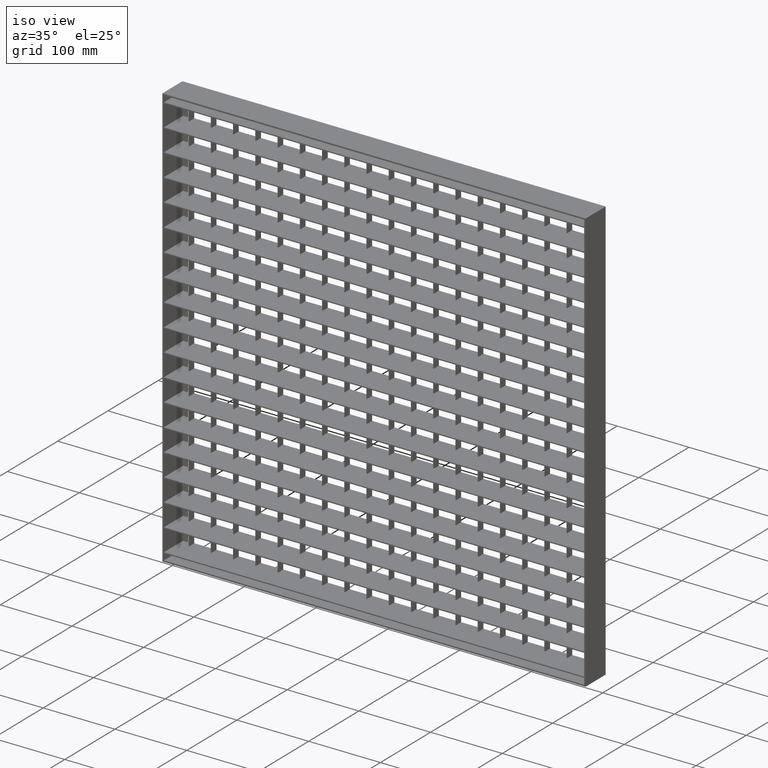
[diagram: clean part render]
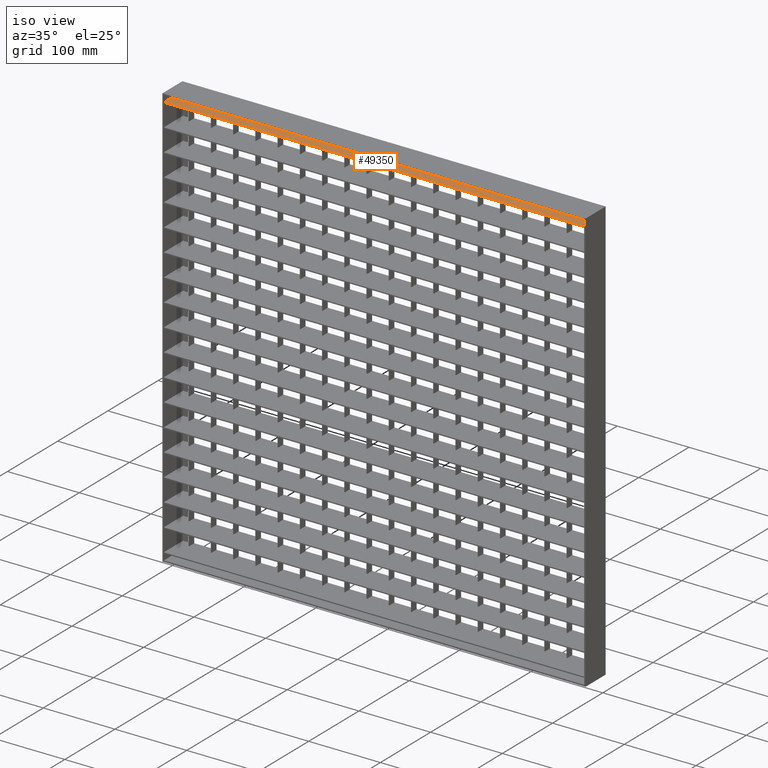
[diagram: same view with one face highlighted and labeled with its STEP entity id]
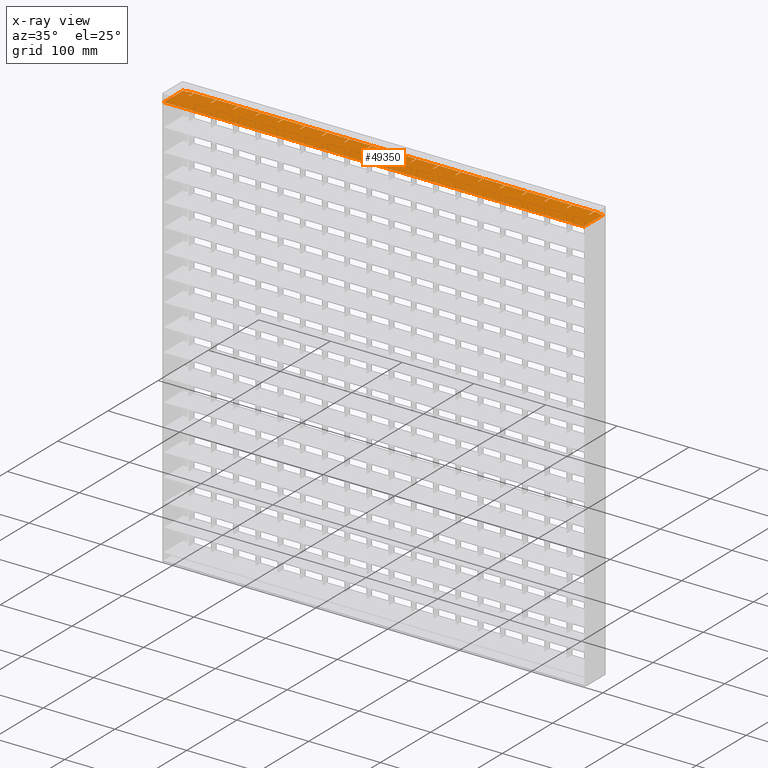
[diagram: x-ray of the same camera — body ghosted, the highlighted face saturated]
A machine part, iso view. The second image highlights one B-rep face of the part: STEP entity #49350.
The next image is the same camera in x-ray: the body ghosted, the highlighted face saturated — about 0% of this face is hidden behind the body in this view.
In plain terms, the highlighted planar face has unit normal (0, 0, 1).
Its self-contained STEP definition (entity closure, byte-faithful):
#178 = VERTEX_POINT ( 'NONE', #47613 ) ;
#377 = VERTEX_POINT ( 'NONE', #43850 ) ;
#491 = EDGE_CURVE ( 'NONE', #38426, #30958, #29042, .T. ) ;
#538 = CARTESIAN_POINT ( 'NONE',  ( 325.5000000000000600, 20.00000000000009600, -10.75000000000009200 ) ) ;
#606 = ORIENTED_EDGE ( 'NONE', *, *, #12382, .T. ) ;
#748 = EDGE_CURVE ( 'NONE', #22182, #36396, #16871, .T. ) ;
#953 = DIRECTION ( 'NONE',  ( -0.0000000000000000000, 1.000000000000000000, 0.0000000000000000000 ) ) ;
#1036 = CARTESIAN_POINT ( 'NONE',  ( 47.49999999999998600, 20.00000000000001400, -10.75000000000009200 ) ) ;
#1085 = CARTESIAN_POINT ( 'NONE',  ( 628.0281151192512000, 9.999999999999994700, -10.75000000000009200 ) ) ;
#1111 = ORIENTED_EDGE ( 'NONE', *, *, #28995, .F. ) ;
#1199 = CARTESIAN_POINT ( 'NONE',  ( 628.0281151192512000, -19.99999999999981200, -10.75000000000009200 ) ) ;
#1262 = DIRECTION ( 'NONE',  ( 1.000000000000000000, 0.0000000000000000000, -0.0000000000000000000 ) ) ;
#1347 = DIRECTION ( 'NONE',  ( -1.000000000000000000, -3.061616997868382600E-016, 0.0000000000000000000 ) ) ;
#1507 = VECTOR ( 'NONE', #43702, 1000.000000000000000 ) ;
#1565 = VECTOR ( 'NONE', #50075, 1000.000000000000000 ) ;
#1585 = VECTOR ( 'NONE', #9412, 1000.000000000000000 ) ;
#1677 = ORIENTED_EDGE ( 'NONE', *, *, #14624, .T. ) ;
#1682 = VECTOR ( 'NONE', #26726, 1000.000000000000000 ) ;
#1778 = VERTEX_POINT ( 'NONE', #36114 ) ;
#1788 = LINE ( 'NONE', #45866, #28157 ) ;
#1843 = VERTEX_POINT ( 'NONE', #10263 ) ;
#1844 = ORIENTED_EDGE ( 'NONE', *, *, #39685, .T. ) ;
#1917 = CARTESIAN_POINT ( 'NONE',  ( 109.5000000000000400, 20.00000000000003200, -10.75000000000009200 ) ) ;
#1943 = CARTESIAN_POINT ( 'NONE',  ( 480.5000000000000600, -19.99999999999981200, -10.75000000000009200 ) ) ;
#1993 = CARTESIAN_POINT ( 'NONE',  ( 588.0000000000002300, 18.00000000000000400, -10.75000000000014900 ) ) ;
#2036 = EDGE_CURVE ( 'NONE', #45714, #49116, #30170, .T. ) ;
#2067 = LINE ( 'NONE', #29041, #42598 ) ;
#2077 = LINE ( 'NONE', #20305, #35161 ) ;
#2201 = VECTOR ( 'NONE', #43516, 1000.000000000000000 ) ;
#2261 = ORIENTED_EDGE ( 'NONE', *, *, #24356, .T. ) ;
#2312 = EDGE_CURVE ( 'NONE', #22657, #15153, #1788, .T. ) ;
#2346 = LINE ( 'NONE', #39478, #12466 ) ;
#2358 = ORIENTED_EDGE ( 'NONE', *, *, #54638, .T. ) ;
#2379 = DIRECTION ( 'NONE',  ( -0.0000000000000000000, 1.000000000000000000, 0.0000000000000000000 ) ) ;
#2452 = LINE ( 'NONE', #36810, #4451 ) ;
#2471 = LINE ( 'NONE', #47504, #15975 ) ;
#2476 = LINE ( 'NONE', #22723, #47069 ) ;
#2493 = LINE ( 'NONE', #53087, #39701 ) ;
#2497 = EDGE_CURVE ( 'NONE', #33221, #20227, #9217, .T. ) ;
#2511 = VERTEX_POINT ( 'NONE', #16214 ) ;
#2566 = ORIENTED_EDGE ( 'NONE', *, *, #51029, .T. ) ;
#2604 = LINE ( 'NONE', #27017, #31545 ) ;
#2658 = CARTESIAN_POINT ( 'NONE',  ( 140.5000000000000600, -19.99999999999981200, -10.75000000000009200 ) ) ;
#2987 = CARTESIAN_POINT ( 'NONE',  ( 511.5000000000000600, 20.00000000000015600, -10.75000000000009200 ) ) ;
#2991 = DIRECTION ( 'NONE',  ( 1.000000000000000000, 0.0000000000000000000, -0.0000000000000000000 ) ) ;
#3079 = DIRECTION ( 'NONE',  ( -0.0000000000000000000, 1.000000000000000000, 0.0000000000000000000 ) ) ;
#3356 = CARTESIAN_POINT ( 'NONE',  ( 628.0281151192512000, 9.999999999999994700, -10.75000000000009200 ) ) ;
#3358 = VECTOR ( 'NONE', #14367, 1000.000000000000000 ) ;
#3559 = DIRECTION ( 'NONE',  ( -1.000000000000000000, 0.0000000000000000000, 0.0000000000000000000 ) ) ;
#3568 = DIRECTION ( 'NONE',  ( -0.0000000000000000000, 1.000000000000000000, 0.0000000000000000000 ) ) ;
#3670 = CARTESIAN_POINT ( 'NONE',  ( 418.5000000000000600, 20.00000000000012800, -10.75000000000009200 ) ) ;
#3686 = DIRECTION ( 'NONE',  ( -0.0000000000000000000, 1.000000000000000000, 0.0000000000000000000 ) ) ;
#3726 = CARTESIAN_POINT ( 'NONE',  ( 140.5000000000000600, 20.00000000000004300, -10.75000000000009200 ) ) ;
#3787 = VECTOR ( 'NONE', #49495, 1000.000000000000000 ) ;
#3949 = DIRECTION ( 'NONE',  ( -1.000000000000000000, 0.0000000000000000000, 0.0000000000000000000 ) ) ;
#3998 = EDGE_CURVE ( 'NONE', #52603, #377, #45279, .T. ) ;
#4078 = DIRECTION ( 'NONE',  ( 0.0000000000000000000, -1.000000000000000000, 0.0000000000000000000 ) ) ;
#4127 = VECTOR ( 'NONE', #11905, 1000.000000000000000 ) ;
#4178 = ORIENTED_EDGE ( 'NONE', *, *, #43328, .F. ) ;
#4277 = LINE ( 'NONE', #4541, #46864 ) ;
#4325 = CARTESIAN_POINT ( 'NONE',  ( 543.5000000000001100, -19.99999999999981200, -10.75000000000009200 ) ) ;
#4331 = DIRECTION ( 'NONE',  ( 1.000000000000000000, 0.0000000000000000000, -0.0000000000000000000 ) ) ;
#4338 = LINE ( 'NONE', #10538, #48946 ) ;
#4373 = VERTEX_POINT ( 'NONE', #49702 ) ;
#4434 = CARTESIAN_POINT ( 'NONE',  ( 628.0281151192512000, 9.999999999999994700, -10.75000000000009200 ) ) ;
#4451 = VECTOR ( 'NONE', #6421, 1000.000000000000000 ) ;
#4541 = CARTESIAN_POINT ( 'NONE',  ( 418.5000000000001100, -19.99999999999981200, -10.75000000000009200 ) ) ;
#4615 = CARTESIAN_POINT ( 'NONE',  ( 449.5000000000000600, 9.999999999999994700, -10.75000000000014900 ) ) ;
#4619 = ORIENTED_EDGE ( 'NONE', *, *, #39661, .F. ) ;
#4627 = CARTESIAN_POINT ( 'NONE',  ( 542.5000000000000000, -19.99999999999981200, -10.75000000000009200 ) ) ;
#4663 = ORIENTED_EDGE ( 'NONE', *, *, #31160, .T. ) ;
#4893 = VECTOR ( 'NONE', #46875, 1000.000000000000000 ) ;
#5006 = LINE ( 'NONE', #53693, #7710 ) ;
#5024 = CARTESIAN_POINT ( 'NONE',  ( 450.5000000000001100, -19.99999999999981200, -10.75000000000009200 ) ) ;
#5067 = CARTESIAN_POINT ( 'NONE',  ( 201.5000000000000000, -19.99999999999981200, -10.75000000000009200 ) ) ;
#5092 = VECTOR ( 'NONE', #47512, 1000.000000000000000 ) ;
#5162 = CARTESIAN_POINT ( 'NONE',  ( 295.5000000000000600, -19.99999999999981200, -10.75000000000009200 ) ) ;
#5805 = DIRECTION ( 'NONE',  ( 1.000000000000000000, 0.0000000000000000000, -0.0000000000000000000 ) ) ;
#5812 = VERTEX_POINT ( 'NONE', #25725 ) ;
#5829 = ORIENTED_EDGE ( 'NONE', *, *, #45049, .T. ) ;
#5867 = CARTESIAN_POINT ( 'NONE',  ( 109.5000000000000400, -19.99999999999981200, -10.75000000000009200 ) ) ;
#6244 = VERTEX_POINT ( 'NONE', #29748 ) ;
#6421 = DIRECTION ( 'NONE',  ( -1.000000000000000000, 0.0000000000000000000, 0.0000000000000000000 ) ) ;
#6423 = EDGE_CURVE ( 'NONE', #42953, #45344, #33454, .T. ) ;
#6426 = VECTOR ( 'NONE', #47979, 1000.000000000000000 ) ;
#6432 = DIRECTION ( 'NONE',  ( -1.000000000000000000, -3.061616997868382600E-016, 0.0000000000000000000 ) ) ;
#6440 = CARTESIAN_POINT ( 'NONE',  ( 46.50000000000009900, -19.99999999999981200, -10.75000000000009200 ) ) ;
#6534 = ORIENTED_EDGE ( 'NONE', *, *, #25739, .T. ) ;
#6711 = DIRECTION ( 'NONE',  ( 0.0000000000000000000, -1.000000000000000000, 0.0000000000000000000 ) ) ;
#6932 = LINE ( 'NONE', #13807, #18434 ) ;
#7199 = ORIENTED_EDGE ( 'NONE', *, *, #47194, .T. ) ;
#7355 = CARTESIAN_POINT ( 'NONE',  ( 628.0281151192512000, 9.999999999999994700, -10.75000000000009200 ) ) ;
#7374 = ORIENTED_EDGE ( 'NONE', *, *, #49937, .T. ) ;
#7397 = CARTESIAN_POINT ( 'NONE',  ( 108.5000000000000400, 9.999999999999994700, -10.75000000000009200 ) ) ;
#7493 = CARTESIAN_POINT ( 'NONE',  ( 77.50000000000012800, 9.999999999999994700, -10.75000000000009200 ) ) ;
#7688 = ORIENTED_EDGE ( 'NONE', *, *, #11691, .T. ) ;
#7710 = VECTOR ( 'NONE', #31618, 1000.000000000000000 ) ;
#7749 = VERTEX_POINT ( 'NONE', #29142 ) ;
#7794 = EDGE_CURVE ( 'NONE', #51456, #35795, #48159, .T. ) ;
#7805 = VECTOR ( 'NONE', #55450, 1000.000000000000000 ) ;
#7845 = EDGE_CURVE ( 'NONE', #54550, #21712, #20455, .T. ) ;
#7988 = CARTESIAN_POINT ( 'NONE',  ( 628.0281151192510800, 20.00000000000019200, -10.75000000000009200 ) ) ;
#8358 = LINE ( 'NONE', #5067, #1585 ) ;
#8429 = VECTOR ( 'NONE', #47719, 1000.000000000000000 ) ;
#8512 = VECTOR ( 'NONE', #4078, 1000.000000000000000 ) ;
#8520 = EDGE_CURVE ( 'NONE', #32876, #31374, #32517, .T. ) ;
#8796 = LINE ( 'NONE', #51184, #51357 ) ;
#8816 = CARTESIAN_POINT ( 'NONE',  ( 628.0281151192512000, 9.999999999999994700, -10.75000000000009200 ) ) ;
#8931 = CARTESIAN_POINT ( 'NONE',  ( 263.5000000000000600, 9.999999999999994700, -10.75000000000009200 ) ) ;
#8985 = CARTESIAN_POINT ( 'NONE',  ( 628.0281151192512000, 9.999999999999994700, -10.75000000000009200 ) ) ;
#9103 = CARTESIAN_POINT ( 'NONE',  ( 233.5000000000000900, 20.00000000000007100, -10.75000000000009200 ) ) ;
#9217 = LINE ( 'NONE', #29958, #8512 ) ;
#9412 = DIRECTION ( 'NONE',  ( 0.0000000000000000000, -1.000000000000000000, 0.0000000000000000000 ) ) ;
#9439 = LINE ( 'NONE', #32504, #26952 ) ;
#9459 = CARTESIAN_POINT ( 'NONE',  ( 387.5000000000000000, 9.999999999999994700, -10.75000000000014900 ) ) ;
#9519 = ORIENTED_EDGE ( 'NONE', *, *, #17536, .T. ) ;
#9772 = ORIENTED_EDGE ( 'NONE', *, *, #39008, .T. ) ;
#9776 = ORIENTED_EDGE ( 'NONE', *, *, #14704, .T. ) ;
#9848 = DIRECTION ( 'NONE',  ( -0.0000000000000000000, 1.000000000000000000, 0.0000000000000000000 ) ) ;
#9912 = CARTESIAN_POINT ( 'NONE',  ( 325.5000000000000600, -19.99999999999981200, -10.75000000000009200 ) ) ;
#10023 = DIRECTION ( 'NONE',  ( 0.0000000000000000000, -1.000000000000000000, 0.0000000000000000000 ) ) ;
#10201 = CARTESIAN_POINT ( 'NONE',  ( 628.0281151192512000, 9.999999999999994700, -10.75000000000009200 ) ) ;
#10263 = CARTESIAN_POINT ( 'NONE',  ( 326.5000000000000600, 19.99999999999999600, -10.75000000000014900 ) ) ;
#10380 = CARTESIAN_POINT ( 'NONE',  ( 574.5000000000000000, -19.99999999999981200, -10.75000000000009200 ) ) ;
#10487 = VERTEX_POINT ( 'NONE', #42340 ) ;
#10531 = VERTEX_POINT ( 'NONE', #51931 ) ;
#10538 = CARTESIAN_POINT ( 'NONE',  ( 628.0281151192512000, 9.999999999999994700, -10.75000000000009200 ) ) ;
#10655 = CARTESIAN_POINT ( 'NONE',  ( 108.5000000000000400, 19.99999999999999600, -10.75000000000014900 ) ) ;
#10659 = LINE ( 'NONE', #49583, #27526 ) ;
#10693 = CARTESIAN_POINT ( 'NONE',  ( 171.5000000000000300, -19.99999999999981200, -10.75000000000009200 ) ) ;
#10791 = VECTOR ( 'NONE', #1262, 1000.000000000000000 ) ;
#10828 = EDGE_CURVE ( 'NONE', #30958, #5812, #21959, .T. ) ;
#11087 = CARTESIAN_POINT ( 'NONE',  ( 628.0281151192512000, 9.999999999999994700, -10.75000000000009200 ) ) ;
#11128 = DIRECTION ( 'NONE',  ( -1.000000000000000000, -3.061616997868382600E-016, 0.0000000000000000000 ) ) ;
#11330 = ORIENTED_EDGE ( 'NONE', *, *, #50447, .T. ) ;
#11414 = CARTESIAN_POINT ( 'NONE',  ( 628.0281151192510800, 20.00000000000019200, -10.75000000000009200 ) ) ;
#11494 = CARTESIAN_POINT ( 'NONE',  ( 449.5000000000000600, 20.00000000000013500, -10.75000000000009200 ) ) ;
#11496 = DIRECTION ( 'NONE',  ( 1.000000000000000000, 0.0000000000000000000, -0.0000000000000000000 ) ) ;
#11594 = VECTOR ( 'NONE', #30966, 1000.000000000000000 ) ;
#11691 = EDGE_CURVE ( 'NONE', #48483, #4373, #53624, .T. ) ;
#11762 = VERTEX_POINT ( 'NONE', #45011 ) ;
#11905 = DIRECTION ( 'NONE',  ( -0.0000000000000000000, 1.000000000000000000, 0.0000000000000000000 ) ) ;
#11908 = ORIENTED_EDGE ( 'NONE', *, *, #8520, .T. ) ;
#11986 = EDGE_CURVE ( 'NONE', #50224, #29312, #13058, .T. ) ;
#12027 = EDGE_CURVE ( 'NONE', #32360, #27546, #33296, .T. ) ;
#12214 = CARTESIAN_POINT ( 'NONE',  ( 7.999999999999991100, 18.00000000000000400, -10.75000000000014900 ) ) ;
#12293 = LINE ( 'NONE', #28060, #54814 ) ;
#12356 = VERTEX_POINT ( 'NONE', #35487 ) ;
#12382 = EDGE_CURVE ( 'NONE', #1843, #48483, #45407, .T. ) ;
#12466 = VECTOR ( 'NONE', #4331, 1000.000000000000000 ) ;
#12633 = ORIENTED_EDGE ( 'NONE', *, *, #25500, .T. ) ;
#12746 = LINE ( 'NONE', #26825, #51253 ) ;
#12955 = LINE ( 'NONE', #49955, #46069 ) ;
#12995 = VERTEX_POINT ( 'NONE', #22957 ) ;
#13058 = LINE ( 'NONE', #19863, #1565 ) ;
#13061 = VECTOR ( 'NONE', #43698, 1000.000000000000000 ) ;
#13104 = CARTESIAN_POINT ( 'NONE',  ( 7.999999999999991100, 20.00000000000000400, -10.75000000000020400 ) ) ;
#13193 = CARTESIAN_POINT ( 'NONE',  ( 2.000000000000001800, -20.00000000000000400, -10.75000000000009200 ) ) ;
#13300 = VECTOR ( 'NONE', #2379, 1000.000000000000000 ) ;
#13349 = DIRECTION ( 'NONE',  ( 1.000000000000000000, 0.0000000000000000000, -0.0000000000000000000 ) ) ;
#13390 = CARTESIAN_POINT ( 'NONE',  ( 139.5000000000000000, 9.999999999999994700, -10.75000000000009200 ) ) ;
#13420 = CARTESIAN_POINT ( 'NONE',  ( 263.5000000000000600, 19.99999999999999600, -10.75000000000014900 ) ) ;
#13522 = CARTESIAN_POINT ( 'NONE',  ( 16.50000000000007100, 9.999999999999998200, -10.75000000000009200 ) ) ;
#13660 = VERTEX_POINT ( 'NONE', #13104 ) ;
#13762 = ORIENTED_EDGE ( 'NONE', *, *, #2497, .F. ) ;
#13788 = LINE ( 'NONE', #11087, #52940 ) ;
#13807 = CARTESIAN_POINT ( 'NONE',  ( 233.5000000000000300, -19.99999999999981200, -10.75000000000009200 ) ) ;
#13855 = VECTOR ( 'NONE', #56011, 1000.000000000000000 ) ;
#14041 = DIRECTION ( 'NONE',  ( -0.0000000000000000000, 1.000000000000000000, 0.0000000000000000000 ) ) ;
#14170 = ORIENTED_EDGE ( 'NONE', *, *, #6423, .T. ) ;
#14188 = CARTESIAN_POINT ( 'NONE',  ( 357.5000000000001100, 9.999999999999994700, -10.75000000000014900 ) ) ;
#14189 = ORIENTED_EDGE ( 'NONE', *, *, #3998, .F. ) ;
#14282 = DIRECTION ( 'NONE',  ( 0.0000000000000000000, -1.000000000000000000, 0.0000000000000000000 ) ) ;
#14297 = CARTESIAN_POINT ( 'NONE',  ( 543.5000000000001100, 19.99999999999999600, -10.75000000000014900 ) ) ;
#14367 = DIRECTION ( 'NONE',  ( -1.000000000000000000, 0.0000000000000000000, 0.0000000000000000000 ) ) ;
#14371 = CARTESIAN_POINT ( 'NONE',  ( 628.0281151192512000, 9.999999999999994700, -10.75000000000009200 ) ) ;
#14384 = VECTOR ( 'NONE', #35798, 1000.000000000000000 ) ;
#14564 = VERTEX_POINT ( 'NONE', #45983 ) ;
#14624 = EDGE_CURVE ( 'NONE', #52102, #40313, #35820, .T. ) ;
#14704 = EDGE_CURVE ( 'NONE', #39232, #38225, #33756, .T. ) ;
#14734 = DIRECTION ( 'NONE',  ( -0.0000000000000000000, 1.000000000000000000, 0.0000000000000000000 ) ) ;
#14740 = ORIENTED_EDGE ( 'NONE', *, *, #42655, .F. ) ;
#14862 = CARTESIAN_POINT ( 'NONE',  ( 628.0281151192512000, 9.999999999999994700, -10.75000000000009200 ) ) ;
#14898 = CARTESIAN_POINT ( 'NONE',  ( 15.50000000000001400, 19.99999999999999600, -10.75000000000036900 ) ) ;
#15153 = VERTEX_POINT ( 'NONE', #14188 ) ;
#15333 = LINE ( 'NONE', #8985, #47073 ) ;
#15375 = ORIENTED_EDGE ( 'NONE', *, *, #50067, .F. ) ;
#15643 = VECTOR ( 'NONE', #34524, 1000.000000000000000 ) ;
#15975 = VECTOR ( 'NONE', #3686, 1000.000000000000000 ) ;
#16016 = DIRECTION ( 'NONE',  ( 1.000000000000000000, 0.0000000000000000000, -0.0000000000000000000 ) ) ;
#16163 = CARTESIAN_POINT ( 'NONE',  ( 77.50000000000001400, -19.99999999999981200, -10.75000000000009200 ) ) ;
#16187 = FACE_OUTER_BOUND ( 'NONE', #49219, .T. ) ;
#16201 = ORIENTED_EDGE ( 'NONE', *, *, #23074, .F. ) ;
#16214 = CARTESIAN_POINT ( 'NONE',  ( 294.5000000000000600, 9.999999999999994700, -10.75000000000009200 ) ) ;
#16247 = CARTESIAN_POINT ( 'NONE',  ( 46.50000000000004300, 19.99999999999999600, -10.75000000000014900 ) ) ;
#16263 = CARTESIAN_POINT ( 'NONE',  ( 511.5000000000000600, -19.99999999999981200, -10.75000000000009200 ) ) ;
#16339 = CARTESIAN_POINT ( 'NONE',  ( 573.5000000000001100, 20.00000000000017400, -10.75000000000009200 ) ) ;
#16363 = ORIENTED_EDGE ( 'NONE', *, *, #26978, .F. ) ;
#16393 = LINE ( 'NONE', #7988, #4893 ) ;
#16472 = CARTESIAN_POINT ( 'NONE',  ( 108.5000000000000400, -19.99999999999981200, -10.75000000000009200 ) ) ;
#16507 = VECTOR ( 'NONE', #45408, 1000.000000000000000 ) ;
#16659 = VECTOR ( 'NONE', #11128, 1000.000000000000000 ) ;
#16871 = LINE ( 'NONE', #51135, #19571 ) ;
#17062 = DIRECTION ( 'NONE',  ( -0.0000000000000000000, 1.000000000000000000, 0.0000000000000000000 ) ) ;
#17178 = EDGE_CURVE ( 'NONE', #29312, #46351, #27312, .T. ) ;
#17219 = CARTESIAN_POINT ( 'NONE',  ( 388.5000000000000000, 19.99999999999999600, -10.75000000000014900 ) ) ;
#17451 = CARTESIAN_POINT ( 'NONE',  ( 628.0281151192510800, 20.00000000000019200, -10.75000000000009200 ) ) ;
#17536 = EDGE_CURVE ( 'NONE', #51456, #41029, #5006, .T. ) ;
#17643 = DIRECTION ( 'NONE',  ( -1.000000000000000000, -3.061616997868382600E-016, 0.0000000000000000000 ) ) ;
#17866 = CARTESIAN_POINT ( 'NONE',  ( 201.5000000000000000, 9.999999999999994700, -10.75000000000009200 ) ) ;
#17904 = VERTEX_POINT ( 'NONE', #36455 ) ;
#17937 = CARTESIAN_POINT ( 'NONE',  ( 628.0281151192510800, 20.00000000000019200, -10.75000000000009200 ) ) ;
#17969 = CARTESIAN_POINT ( 'NONE',  ( 326.5000000000000600, -19.99999999999981200, -10.75000000000009200 ) ) ;
#18046 = DIRECTION ( 'NONE',  ( -1.000000000000000000, 0.0000000000000000000, 0.0000000000000000000 ) ) ;
#18173 = VERTEX_POINT ( 'NONE', #34164 ) ;
#18176 = CARTESIAN_POINT ( 'NONE',  ( 202.5000000000000000, -19.99999999999981200, -10.75000000000009200 ) ) ;
#18434 = VECTOR ( 'NONE', #953, 1000.000000000000000 ) ;
#18480 = CARTESIAN_POINT ( 'NONE',  ( 264.5000000000000600, 9.999999999999998200, -10.75000000000009200 ) ) ;
#18571 = DIRECTION ( 'NONE',  ( 0.0000000000000000000, 1.000000000000000000, -0.0000000000000000000 ) ) ;
#18596 = LINE ( 'NONE', #12214, #7805 ) ;
#18663 = CARTESIAN_POINT ( 'NONE',  ( 628.0281151192510800, 20.00000000000019200, -10.75000000000009200 ) ) ;
#18714 = ORIENTED_EDGE ( 'NONE', *, *, #25163, .F. ) ;
#18753 = DIRECTION ( 'NONE',  ( -1.000000000000000000, -3.061616997868382600E-016, 0.0000000000000000000 ) ) ;
#18926 = ORIENTED_EDGE ( 'NONE', *, *, #28419, .T. ) ;
#19073 = VECTOR ( 'NONE', #29483, 1000.000000000000000 ) ;
#19107 = LINE ( 'NONE', #17451, #2201 ) ;
#19176 = VERTEX_POINT ( 'NONE', #34156 ) ;
#19202 = ORIENTED_EDGE ( 'NONE', *, *, #29116, .T. ) ;
#19309 = LINE ( 'NONE', #50781, #55754 ) ;
#19373 = LINE ( 'NONE', #10693, #13300 ) ;
#19374 = CARTESIAN_POINT ( 'NONE',  ( 574.5000000000000000, 9.999999999999994700, -10.75000000000014900 ) ) ;
#19571 = VECTOR ( 'NONE', #25066, 1000.000000000000000 ) ;
#19794 = EDGE_CURVE ( 'NONE', #12995, #21506, #45605, .T. ) ;
#19861 = ORIENTED_EDGE ( 'NONE', *, *, #37599, .F. ) ;
#19863 = CARTESIAN_POINT ( 'NONE',  ( 449.5000000000001100, -19.99999999999981200, -10.75000000000009200 ) ) ;
#19893 = EDGE_CURVE ( 'NONE', #38225, #54550, #25320, .T. ) ;
#20119 = EDGE_CURVE ( 'NONE', #30879, #53018, #42186, .T. ) ;
#20123 = DIRECTION ( 'NONE',  ( 0.0000000000000000000, -1.000000000000000000, 0.0000000000000000000 ) ) ;
#20147 = CARTESIAN_POINT ( 'NONE',  ( 295.5000000000000600, 9.999999999999998200, -10.75000000000009200 ) ) ;
#20154 = DIRECTION ( 'NONE',  ( 1.000000000000000000, 0.0000000000000000000, -0.0000000000000000000 ) ) ;
#20211 = CARTESIAN_POINT ( 'NONE',  ( 2.000000000000003600, -20.00000000000000000, -10.75000000000014900 ) ) ;
#20227 = VERTEX_POINT ( 'NONE', #54807 ) ;
#20286 = DIRECTION ( 'NONE',  ( 0.0000000000000000000, -1.000000000000000000, 0.0000000000000000000 ) ) ;
#20305 = CARTESIAN_POINT ( 'NONE',  ( 294.5000000000000600, -19.99999999999981200, -10.75000000000009200 ) ) ;
#20313 = DIRECTION ( 'NONE',  ( 0.0000000000000000000, -1.000000000000000000, 0.0000000000000000000 ) ) ;
#20336 = CARTESIAN_POINT ( 'NONE',  ( 573.5000000000001100, 9.999999999999994700, -10.75000000000014900 ) ) ;
#20403 = DIRECTION ( 'NONE',  ( 0.0000000000000000000, -1.000000000000000000, 0.0000000000000000000 ) ) ;
#20434 = CARTESIAN_POINT ( 'NONE',  ( 628.0281151192510800, 20.00000000000019200, -10.75000000000009200 ) ) ;
#20455 = LINE ( 'NONE', #11414, #53543 ) ;
#20486 = VERTEX_POINT ( 'NONE', #8931 ) ;
#20574 = EDGE_CURVE ( 'NONE', #45162, #10531, #34658, .T. ) ;
#20653 = CARTESIAN_POINT ( 'NONE',  ( 511.5000000000000600, 9.999999999999994700, -10.75000000000014900 ) ) ;
#20795 = ORIENTED_EDGE ( 'NONE', *, *, #55293, .F. ) ;
#20810 = ORIENTED_EDGE ( 'NONE', *, *, #31010, .T. ) ;
#20835 = CARTESIAN_POINT ( 'NONE',  ( 139.5000000000000600, -19.99999999999981200, -10.75000000000009200 ) ) ;
#20970 = ORIENTED_EDGE ( 'NONE', *, *, #7845, .T. ) ;
#21031 = EDGE_CURVE ( 'NONE', #21506, #46337, #6932, .T. ) ;
#21044 = VERTEX_POINT ( 'NONE', #35671 ) ;
#21150 = VERTEX_POINT ( 'NONE', #36602 ) ;
#21247 = CARTESIAN_POINT ( 'NONE',  ( 388.5000000000000000, 9.999999999999994700, -10.75000000000014900 ) ) ;
#21277 = EDGE_CURVE ( 'NONE', #42989, #30879, #27817, .T. ) ;
#21390 = CARTESIAN_POINT ( 'NONE',  ( 78.50000000000001400, -19.99999999999981200, -10.75000000000009200 ) ) ;
#21506 = VERTEX_POINT ( 'NONE', #34483 ) ;
#21681 = ORIENTED_EDGE ( 'NONE', *, *, #26710, .F. ) ;
#21712 = VERTEX_POINT ( 'NONE', #14297 ) ;
#21956 = EDGE_CURVE ( 'NONE', #22476, #13660, #8796, .T. ) ;
#21959 = LINE ( 'NONE', #31886, #32089 ) ;
#22112 = VECTOR ( 'NONE', #24236, 1000.000000000000000 ) ;
#22182 = VERTEX_POINT ( 'NONE', #30577 ) ;
#22200 = ORIENTED_EDGE ( 'NONE', *, *, #24929, .T. ) ;
#22299 = VECTOR ( 'NONE', #17062, 1000.000000000000000 ) ;
#22303 = CARTESIAN_POINT ( 'NONE',  ( 419.5000000000000600, 19.99999999999999600, -10.75000000000014900 ) ) ;
#22392 = LINE ( 'NONE', #4325, #15643 ) ;
#22446 = DIRECTION ( 'NONE',  ( -1.000000000000000000, -3.061616997868382600E-016, 0.0000000000000000000 ) ) ;
#22468 = CARTESIAN_POINT ( 'NONE',  ( 628.0281151192510800, 20.00000000000019200, -10.75000000000009200 ) ) ;
#22476 = VERTEX_POINT ( 'NONE', #14898 ) ;
#22508 = VERTEX_POINT ( 'NONE', #42650 ) ;
#22528 = CARTESIAN_POINT ( 'NONE',  ( 582.0000000000001100, 18.00000000000000400, -10.75000000000014900 ) ) ;
#22609 = CARTESIAN_POINT ( 'NONE',  ( 388.5000000000000600, -19.99999999999981200, -10.75000000000009200 ) ) ;
#22657 = VERTEX_POINT ( 'NONE', #47750 ) ;
#22723 = CARTESIAN_POINT ( 'NONE',  ( 628.0281151192510800, 20.00000000000019200, -10.75000000000009200 ) ) ;
#22761 = LINE ( 'NONE', #5867, #27448 ) ;
#22850 = CARTESIAN_POINT ( 'NONE',  ( 574.5000000000000000, 19.99999999999999600, -10.75000000000014900 ) ) ;
#22957 = CARTESIAN_POINT ( 'NONE',  ( 232.4999999999999700, 9.999999999999994700, -10.75000000000009200 ) ) ;
#23074 = EDGE_CURVE ( 'NONE', #22476, #22508, #45859, .T. ) ;
#23278 = ORIENTED_EDGE ( 'NONE', *, *, #2036, .T. ) ;
#23288 = ORIENTED_EDGE ( 'NONE', *, *, #37291, .T. ) ;
#23651 = CARTESIAN_POINT ( 'NONE',  ( 480.5000000000000000, 9.999999999999994700, -10.75000000000014900 ) ) ;
#23737 = DIRECTION ( 'NONE',  ( -1.000000000000000000, 0.0000000000000000000, 0.0000000000000000000 ) ) ;
#23850 = EDGE_CURVE ( 'NONE', #45615, #28352, #19373, .T. ) ;
#23922 = ORIENTED_EDGE ( 'NONE', *, *, #37520, .T. ) ;
#23947 = LINE ( 'NONE', #35046, #1682 ) ;
#23985 = VECTOR ( 'NONE', #10023, 1000.000000000000000 ) ;
#24076 = LINE ( 'NONE', #27908, #16659 ) ;
#24078 = ORIENTED_EDGE ( 'NONE', *, *, #11986, .T. ) ;
#24100 = CARTESIAN_POINT ( 'NONE',  ( 628.0281151192510800, 20.00000000000019200, -10.75000000000009200 ) ) ;
#24236 = DIRECTION ( 'NONE',  ( 1.000000000000000000, 0.0000000000000000000, -0.0000000000000000000 ) ) ;
#24351 = VECTOR ( 'NONE', #17643, 1000.000000000000000 ) ;
#24356 = EDGE_CURVE ( 'NONE', #31374, #18173, #2604, .T. ) ;
#24378 = EDGE_CURVE ( 'NONE', #1778, #25345, #27062, .T. ) ;
#24388 = CARTESIAN_POINT ( 'NONE',  ( 295.5000000000000600, 20.00000000000009200, -10.75000000000009200 ) ) ;
#24425 = ORIENTED_EDGE ( 'NONE', *, *, #10828, .T. ) ;
#24643 = VERTEX_POINT ( 'NONE', #24388 ) ;
#24722 = PLANE ( 'NONE',  #47162 ) ;
#24747 = LINE ( 'NONE', #1943, #48447 ) ;
#24917 = VERTEX_POINT ( 'NONE', #13420 ) ;
#24929 = EDGE_CURVE ( 'NONE', #6244, #47439, #4277, .T. ) ;
#25024 = VECTOR ( 'NONE', #18753, 1000.000000000000000 ) ;
#25066 = DIRECTION ( 'NONE',  ( -1.000000000000000000, 0.0000000000000000000, 0.0000000000000000000 ) ) ;
#25163 = EDGE_CURVE ( 'NONE', #20227, #45615, #46809, .T. ) ;
#25320 = LINE ( 'NONE', #30150, #8429 ) ;
#25345 = VERTEX_POINT ( 'NONE', #13193 ) ;
#25453 = VECTOR ( 'NONE', #28925, 1000.000000000000000 ) ;
#25500 = EDGE_CURVE ( 'NONE', #28768, #38426, #32554, .T. ) ;
#25725 = CARTESIAN_POINT ( 'NONE',  ( 387.5000000000000000, 20.00000000000011700, -10.75000000000009200 ) ) ;
#25739 = EDGE_CURVE ( 'NONE', #47439, #28768, #12955, .T. ) ;
#25978 = CARTESIAN_POINT ( 'NONE',  ( 628.0281151192512000, 9.999999999999994700, -10.75000000000009200 ) ) ;
#26167 = CARTESIAN_POINT ( 'NONE',  ( 542.5000000000000000, 9.999999999999994700, -10.75000000000014900 ) ) ;
#26327 = EDGE_CURVE ( 'NONE', #32360, #377, #2067, .T. ) ;
#26405 = ORIENTED_EDGE ( 'NONE', *, *, #53817, .T. ) ;
#26467 = VECTOR ( 'NONE', #42086, 1000.000000000000000 ) ;
#26668 = LINE ( 'NONE', #22468, #6426 ) ;
#26678 = ORIENTED_EDGE ( 'NONE', *, *, #38310, .F. ) ;
#26710 = EDGE_CURVE ( 'NONE', #20486, #45162, #54710, .T. ) ;
#26726 = DIRECTION ( 'NONE',  ( 0.0000000000000000000, -1.000000000000000000, 0.0000000000000000000 ) ) ;
#26825 = CARTESIAN_POINT ( 'NONE',  ( 628.0281151192512000, 9.999999999999994700, -10.75000000000009200 ) ) ;
#26952 = VECTOR ( 'NONE', #27412, 1000.000000000000000 ) ;
#26978 = EDGE_CURVE ( 'NONE', #49808, #2511, #2077, .T. ) ;
#27017 = CARTESIAN_POINT ( 'NONE',  ( 628.0281151192510800, 20.00000000000019200, -10.75000000000009200 ) ) ;
#27062 = LINE ( 'NONE', #1199, #25024 ) ;
#27266 = VECTOR ( 'NONE', #14282, 1000.000000000000000 ) ;
#27274 = EDGE_CURVE ( 'NONE', #11762, #45714, #43246, .T. ) ;
#27312 = LINE ( 'NONE', #45898, #32741 ) ;
#27388 = EDGE_CURVE ( 'NONE', #19176, #12995, #9439, .T. ) ;
#27402 = VERTEX_POINT ( 'NONE', #23651 ) ;
#27404 = DIRECTION ( 'NONE',  ( -1.000000000000000000, -3.061616997868382600E-016, 0.0000000000000000000 ) ) ;
#27412 = DIRECTION ( 'NONE',  ( 0.0000000000000000000, -1.000000000000000000, 0.0000000000000000000 ) ) ;
#27448 = VECTOR ( 'NONE', #9848, 1000.000000000000000 ) ;
#27471 = CARTESIAN_POINT ( 'NONE',  ( 512.5000000000000000, 9.999999999999994700, -10.75000000000014900 ) ) ;
#27526 = VECTOR ( 'NONE', #20123, 1000.000000000000000 ) ;
#27546 = VERTEX_POINT ( 'NONE', #7397 ) ;
#27640 = DIRECTION ( 'NONE',  ( -1.000000000000000000, 0.0000000000000000000, 0.0000000000000000000 ) ) ;
#27817 = LINE ( 'NONE', #3356, #26467 ) ;
#27823 = VERTEX_POINT ( 'NONE', #52110 ) ;
#27891 = VERTEX_POINT ( 'NONE', #1993 ) ;
#27908 = CARTESIAN_POINT ( 'NONE',  ( 628.0281151192510800, 20.00000000000019200, -10.75000000000009200 ) ) ;
#27947 = VERTEX_POINT ( 'NONE', #27471 ) ;
#28004 = VECTOR ( 'NONE', #35569, 1000.000000000000000 ) ;
#28020 = CARTESIAN_POINT ( 'NONE',  ( 47.49999999999998600, -19.99999999999981200, -10.75000000000009200 ) ) ;
#28037 = DIRECTION ( 'NONE',  ( -1.000000000000000000, -3.061616997868382600E-016, 0.0000000000000000000 ) ) ;
#28060 = CARTESIAN_POINT ( 'NONE',  ( 2.000000000000003600, 18.00000000000000400, -10.75000000000014900 ) ) ;
#28157 = VECTOR ( 'NONE', #37543, 1000.000000000000000 ) ;
#28280 = ORIENTED_EDGE ( 'NONE', *, *, #49928, .T. ) ;
#28352 = VERTEX_POINT ( 'NONE', #31785 ) ;
#28419 = EDGE_CURVE ( 'NONE', #19176, #178, #29572, .T. ) ;
#28435 = CARTESIAN_POINT ( 'NONE',  ( 139.5000000000000300, 19.99999999999999600, -10.75000000000014900 ) ) ;
#28667 = EDGE_CURVE ( 'NONE', #22508, #43478, #48475, .T. ) ;
#28768 = VERTEX_POINT ( 'NONE', #17219 ) ;
#28823 = ORIENTED_EDGE ( 'NONE', *, *, #44135, .T. ) ;
#28899 = CARTESIAN_POINT ( 'NONE',  ( 588.0000000000001100, -19.99999999999981200, -10.75000000000009200 ) ) ;
#28902 = LINE ( 'NONE', #24100, #47169 ) ;
#28925 = DIRECTION ( 'NONE',  ( -1.000000000000000000, -3.061616997868382600E-016, 0.0000000000000000000 ) ) ;
#28982 = LINE ( 'NONE', #33650, #44553 ) ;
#28995 = EDGE_CURVE ( 'NONE', #12356, #41029, #22761, .T. ) ;
#29001 = ORIENTED_EDGE ( 'NONE', *, *, #27274, .T. ) ;
#29041 = CARTESIAN_POINT ( 'NONE',  ( 628.0281151192510800, 20.00000000000019200, -10.75000000000009200 ) ) ;
#29042 = LINE ( 'NONE', #10201, #3358 ) ;
#29116 = EDGE_CURVE ( 'NONE', #21044, #6244, #2452, .T. ) ;
#29142 = CARTESIAN_POINT ( 'NONE',  ( 542.5000000000000000, 20.00000000000016300, -10.75000000000009200 ) ) ;
#29153 = EDGE_CURVE ( 'NONE', #33221, #49637, #24076, .T. ) ;
#29292 = VECTOR ( 'NONE', #40064, 1000.000000000000000 ) ;
#29312 = VERTEX_POINT ( 'NONE', #11494 ) ;
#29468 = LINE ( 'NONE', #6440, #3787 ) ;
#29483 = DIRECTION ( 'NONE',  ( 0.0000000000000000000, -1.000000000000000000, 0.0000000000000000000 ) ) ;
#29572 = LINE ( 'NONE', #52939, #37001 ) ;
#29623 = CARTESIAN_POINT ( 'NONE',  ( 628.0281151192512000, 9.999999999999994700, -10.75000000000009200 ) ) ;
#29748 = CARTESIAN_POINT ( 'NONE',  ( 418.5000000000000600, 9.999999999999994700, -10.75000000000014900 ) ) ;
#29958 = CARTESIAN_POINT ( 'NONE',  ( 170.5000000000000300, -19.99999999999981200, -10.75000000000009200 ) ) ;
#29962 = LINE ( 'NONE', #14862, #50871 ) ;
#30023 = LINE ( 'NONE', #17937, #36072 ) ;
#30055 = VERTEX_POINT ( 'NONE', #42034 ) ;
#30067 = CARTESIAN_POINT ( 'NONE',  ( 481.5000000000000000, 9.999999999999994700, -10.75000000000014900 ) ) ;
#30150 = CARTESIAN_POINT ( 'NONE',  ( 573.5000000000001100, -19.99999999999981200, -10.75000000000009200 ) ) ;
#30170 = LINE ( 'NONE', #20434, #25453 ) ;
#30319 = EDGE_CURVE ( 'NONE', #36396, #7749, #47004, .T. ) ;
#30377 = VECTOR ( 'NONE', #18571, 1000.000000000000000 ) ;
#30564 = EDGE_CURVE ( 'NONE', #27402, #30055, #24747, .T. ) ;
#30571 = DIRECTION ( 'NONE',  ( -0.0000000000000000000, 1.000000000000000000, 0.0000000000000000000 ) ) ;
#30577 = CARTESIAN_POINT ( 'NONE',  ( 543.5000000000001100, 9.999999999999994700, -10.75000000000014900 ) ) ;
#30775 = VECTOR ( 'NONE', #3949, 1000.000000000000000 ) ;
#30846 = DIRECTION ( 'NONE',  ( -1.000000000000000000, -3.061616997868382600E-016, 0.0000000000000000000 ) ) ;
#30879 = VERTEX_POINT ( 'NONE', #51760 ) ;
#30904 = VECTOR ( 'NONE', #42400, 1000.000000000000000 ) ;
#30958 = VERTEX_POINT ( 'NONE', #9459 ) ;
#30966 = DIRECTION ( 'NONE',  ( 0.0000000000000000000, -1.000000000000000000, 0.0000000000000000000 ) ) ;
#31010 = EDGE_CURVE ( 'NONE', #27823, #28352, #26668, .T. ) ;
#31021 = VECTOR ( 'NONE', #40581, 1000.000000000000000 ) ;
#31106 = LINE ( 'NONE', #48249, #54072 ) ;
#31160 = EDGE_CURVE ( 'NONE', #49116, #39232, #35446, .T. ) ;
#31306 = CARTESIAN_POINT ( 'NONE',  ( 16.49999999999995700, 20.00000000000000400, -10.75000000000009200 ) ) ;
#31359 = DIRECTION ( 'NONE',  ( -0.0000000000000000000, 1.000000000000000000, 0.0000000000000000000 ) ) ;
#31374 = VERTEX_POINT ( 'NONE', #2987 ) ;
#31418 = DIRECTION ( 'NONE',  ( -1.000000000000000000, -3.061616997868382600E-016, 0.0000000000000000000 ) ) ;
#31528 = LINE ( 'NONE', #28899, #38987 ) ;
#31545 = VECTOR ( 'NONE', #27404, 1000.000000000000000 ) ;
#31618 = DIRECTION ( 'NONE',  ( -1.000000000000000000, -3.061616997868382600E-016, 0.0000000000000000000 ) ) ;
#31785 = CARTESIAN_POINT ( 'NONE',  ( 171.5000000000000300, 20.00000000000005300, -10.75000000000009200 ) ) ;
#31886 = CARTESIAN_POINT ( 'NONE',  ( 387.5000000000000600, -19.99999999999981200, -10.75000000000009200 ) ) ;
#32089 = VECTOR ( 'NONE', #14734, 1000.000000000000000 ) ;
#32215 = EDGE_CURVE ( 'NONE', #7749, #37714, #19107, .T. ) ;
#32360 = VERTEX_POINT ( 'NONE', #10655 ) ;
#32504 = CARTESIAN_POINT ( 'NONE',  ( 232.5000000000000300, -19.99999999999981200, -10.75000000000009200 ) ) ;
#32517 = LINE ( 'NONE', #16263, #4127 ) ;
#32548 = VERTEX_POINT ( 'NONE', #38496 ) ;
#32554 = LINE ( 'NONE', #22609, #14384 ) ;
#32741 = VECTOR ( 'NONE', #6432, 1000.000000000000000 ) ;
#32791 = VECTOR ( 'NONE', #47294, 1000.000000000000000 ) ;
#32876 = VERTEX_POINT ( 'NONE', #20653 ) ;
#33162 = VERTEX_POINT ( 'NONE', #52160 ) ;
#33221 = VERTEX_POINT ( 'NONE', #40307 ) ;
#33296 = LINE ( 'NONE', #16472, #19073 ) ;
#33451 = ORIENTED_EDGE ( 'NONE', *, *, #491, .T. ) ;
#33454 = LINE ( 'NONE', #5024, #5092 ) ;
#33459 = ORIENTED_EDGE ( 'NONE', *, *, #42901, .F. ) ;
#33571 = CARTESIAN_POINT ( 'NONE',  ( 628.0281151192512000, -19.99999999999981200, -10.75000000000009200 ) ) ;
#33650 = CARTESIAN_POINT ( 'NONE',  ( 356.5000000000001100, -19.99999999999981200, -10.75000000000009200 ) ) ;
#33735 = DIRECTION ( 'NONE',  ( -1.000000000000000000, -3.061616997868382600E-016, 0.0000000000000000000 ) ) ;
#33756 = LINE ( 'NONE', #4434, #48647 ) ;
#34103 = ORIENTED_EDGE ( 'NONE', *, *, #30319, .T. ) ;
#34156 = CARTESIAN_POINT ( 'NONE',  ( 232.5000000000000300, 19.99999999999999600, -10.75000000000014900 ) ) ;
#34164 = CARTESIAN_POINT ( 'NONE',  ( 481.5000000000000000, 19.99999999999999600, -10.75000000000014900 ) ) ;
#34251 = ORIENTED_EDGE ( 'NONE', *, *, #19893, .T. ) ;
#34257 = ORIENTED_EDGE ( 'NONE', *, *, #55221, .F. ) ;
#34352 = VECTOR ( 'NONE', #20313, 1000.000000000000000 ) ;
#34371 = DIRECTION ( 'NONE',  ( -1.000000000000000000, -3.061616997868382600E-016, 0.0000000000000000000 ) ) ;
#34483 = CARTESIAN_POINT ( 'NONE',  ( 233.5000000000000300, 9.999999999999998200, -10.75000000000009200 ) ) ;
#34524 = DIRECTION ( 'NONE',  ( 0.0000000000000000000, -1.000000000000000000, 0.0000000000000000000 ) ) ;
#34658 = LINE ( 'NONE', #39356, #13061 ) ;
#35046 = CARTESIAN_POINT ( 'NONE',  ( 419.5000000000001100, -19.99999999999981200, -10.75000000000009200 ) ) ;
#35142 = ORIENTED_EDGE ( 'NONE', *, *, #51019, .T. ) ;
#35161 = VECTOR ( 'NONE', #6711, 1000.000000000000000 ) ;
#35328 = VERTEX_POINT ( 'NONE', #20147 ) ;
#35446 = LINE ( 'NONE', #10380, #23985 ) ;
#35468 = ORIENTED_EDGE ( 'NONE', *, *, #21956, .T. ) ;
#35487 = CARTESIAN_POINT ( 'NONE',  ( 109.5000000000000400, 9.999999999999998200, -10.75000000000009200 ) ) ;
#35506 = EDGE_CURVE ( 'NONE', #43478, #40313, #2471, .T. ) ;
#35569 = DIRECTION ( 'NONE',  ( -0.0000000000000000000, 1.000000000000000000, 0.0000000000000000000 ) ) ;
#35601 = EDGE_CURVE ( 'NONE', #15153, #54367, #15333, .T. ) ;
#35671 = CARTESIAN_POINT ( 'NONE',  ( 419.5000000000000600, 9.999999999999994700, -10.75000000000014900 ) ) ;
#35795 = VERTEX_POINT ( 'NONE', #13390 ) ;
#35798 = DIRECTION ( 'NONE',  ( 0.0000000000000000000, -1.000000000000000000, 0.0000000000000000000 ) ) ;
#35820 = LINE ( 'NONE', #52194, #24351 ) ;
#35827 = CARTESIAN_POINT ( 'NONE',  ( 46.50000000000009900, 9.999999999999994700, -10.75000000000009200 ) ) ;
#36072 = VECTOR ( 'NONE', #22446, 1000.000000000000000 ) ;
#36114 = CARTESIAN_POINT ( 'NONE',  ( 588.0000000000001100, -20.00000000000000400, -10.75000000000009200 ) ) ;
#36117 = EDGE_CURVE ( 'NONE', #49808, #10531, #42528, .T. ) ;
#36396 = VERTEX_POINT ( 'NONE', #26167 ) ;
#36399 = ORIENTED_EDGE ( 'NONE', *, *, #50820, .F. ) ;
#36424 = EDGE_CURVE ( 'NONE', #27546, #12356, #37102, .T. ) ;
#36455 = CARTESIAN_POINT ( 'NONE',  ( 7.999999999999991100, 18.00000000000000400, -10.75000000000020400 ) ) ;
#36602 = CARTESIAN_POINT ( 'NONE',  ( 2.000000000000003600, 18.00000000000000400, -10.75000000000020400 ) ) ;
#36674 = VECTOR ( 'NONE', #11496, 1000.000000000000000 ) ;
#36810 = CARTESIAN_POINT ( 'NONE',  ( 628.0281151192512000, 9.999999999999994700, -10.75000000000009200 ) ) ;
#36870 = DIRECTION ( 'NONE',  ( -0.0000000000000000000, 1.000000000000000000, 0.0000000000000000000 ) ) ;
#37001 = VECTOR ( 'NONE', #31418, 1000.000000000000000 ) ;
#37102 = LINE ( 'NONE', #8816, #47896 ) ;
#37291 = EDGE_CURVE ( 'NONE', #32548, #1843, #2493, .T. ) ;
#37520 = EDGE_CURVE ( 'NONE', #21150, #25345, #39041, .T. ) ;
#37543 = DIRECTION ( 'NONE',  ( 0.0000000000000000000, -1.000000000000000000, 0.0000000000000000000 ) ) ;
#37599 = EDGE_CURVE ( 'NONE', #27891, #1778, #31528, .T. ) ;
#37714 = VERTEX_POINT ( 'NONE', #38918 ) ;
#38164 = ORIENTED_EDGE ( 'NONE', *, *, #24378, .F. ) ;
#38225 = VERTEX_POINT ( 'NONE', #20336 ) ;
#38274 = CARTESIAN_POINT ( 'NONE',  ( 628.0281151192512000, 9.999999999999994700, -10.75000000000009200 ) ) ;
#38310 = EDGE_CURVE ( 'NONE', #35795, #10487, #53739, .T. ) ;
#38426 = VERTEX_POINT ( 'NONE', #21247 ) ;
#38496 = CARTESIAN_POINT ( 'NONE',  ( 356.5000000000001100, 20.00000000000010700, -10.75000000000009200 ) ) ;
#38750 = ORIENTED_EDGE ( 'NONE', *, *, #51488, .T. ) ;
#38918 = CARTESIAN_POINT ( 'NONE',  ( 512.5000000000000000, 19.99999999999999600, -10.75000000000014900 ) ) ;
#38987 = VECTOR ( 'NONE', #20403, 1000.000000000000000 ) ;
#39008 = EDGE_CURVE ( 'NONE', #37714, #27947, #40818, .T. ) ;
#39041 = LINE ( 'NONE', #20211, #43751 ) ;
#39232 = VERTEX_POINT ( 'NONE', #19374 ) ;
#39241 = CARTESIAN_POINT ( 'NONE',  ( 512.5000000000000000, -19.99999999999981200, -10.75000000000009200 ) ) ;
#39356 = CARTESIAN_POINT ( 'NONE',  ( 264.5000000000000600, -19.99999999999981200, -10.75000000000009200 ) ) ;
#39478 = CARTESIAN_POINT ( 'NONE',  ( 628.0281151192512000, 9.999999999999994700, -10.75000000000009200 ) ) ;
#39550 = VECTOR ( 'NONE', #3568, 1000.000000000000000 ) ;
#39613 = CARTESIAN_POINT ( 'NONE',  ( 171.5000000000000300, 9.999999999999998200, -10.75000000000009200 ) ) ;
#39623 = ORIENTED_EDGE ( 'NONE', *, *, #19794, .F. ) ;
#39661 = EDGE_CURVE ( 'NONE', #35328, #24643, #54861, .T. ) ;
#39685 = EDGE_CURVE ( 'NONE', #24917, #46337, #43420, .T. ) ;
#39701 = VECTOR ( 'NONE', #1347, 1000.000000000000000 ) ;
#40064 = DIRECTION ( 'NONE',  ( -1.000000000000000000, 0.0000000000000000000, 0.0000000000000000000 ) ) ;
#40114 = ORIENTED_EDGE ( 'NONE', *, *, #27388, .F. ) ;
#40232 = CARTESIAN_POINT ( 'NONE',  ( 450.5000000000000600, 19.99999999999999600, -10.75000000000014900 ) ) ;
#40241 = VECTOR ( 'NONE', #16016, 1000.000000000000000 ) ;
#40307 = CARTESIAN_POINT ( 'NONE',  ( 170.5000000000000300, 19.99999999999999600, -10.75000000000014900 ) ) ;
#40313 = VERTEX_POINT ( 'NONE', #31306 ) ;
#40482 = ORIENTED_EDGE ( 'NONE', *, *, #36117, .T. ) ;
#40581 = DIRECTION ( 'NONE',  ( -1.000000000000000000, -3.061616997868382600E-016, 0.0000000000000000000 ) ) ;
#40613 = VERTEX_POINT ( 'NONE', #7493 ) ;
#40759 = ORIENTED_EDGE ( 'NONE', *, *, #7794, .F. ) ;
#40818 = LINE ( 'NONE', #39241, #27266 ) ;
#41029 = VERTEX_POINT ( 'NONE', #1917 ) ;
#41321 = CARTESIAN_POINT ( 'NONE',  ( 450.5000000000000600, 9.999999999999994700, -10.75000000000014900 ) ) ;
#41575 = ORIENTED_EDGE ( 'NONE', *, *, #32215, .T. ) ;
#42034 = CARTESIAN_POINT ( 'NONE',  ( 480.5000000000000000, 20.00000000000014600, -10.75000000000009200 ) ) ;
#42086 = DIRECTION ( 'NONE',  ( 1.000000000000000000, 0.0000000000000000000, -0.0000000000000000000 ) ) ;
#42161 = ORIENTED_EDGE ( 'NONE', *, *, #30564, .T. ) ;
#42186 = LINE ( 'NONE', #28020, #16507 ) ;
#42280 = LINE ( 'NONE', #29623, #30775 ) ;
#42340 = CARTESIAN_POINT ( 'NONE',  ( 140.5000000000000600, 9.999999999999998200, -10.75000000000009200 ) ) ;
#42373 = ORIENTED_EDGE ( 'NONE', *, *, #51837, .F. ) ;
#42400 = DIRECTION ( 'NONE',  ( 0.0000000000000000000, -1.000000000000000000, 0.0000000000000000000 ) ) ;
#42497 = ORIENTED_EDGE ( 'NONE', *, *, #35506, .F. ) ;
#42528 = LINE ( 'NONE', #18663, #31021 ) ;
#42598 = VECTOR ( 'NONE', #33735, 1000.000000000000000 ) ;
#42650 = CARTESIAN_POINT ( 'NONE',  ( 15.50000000000006900, 9.999999999999994700, -10.75000000000009200 ) ) ;
#42655 = EDGE_CURVE ( 'NONE', #10487, #49637, #55702, .T. ) ;
#42812 = LINE ( 'NONE', #18176, #51583 ) ;
#42824 = ORIENTED_EDGE ( 'NONE', *, *, #46095, .T. ) ;
#42901 = EDGE_CURVE ( 'NONE', #2511, #35328, #2346, .T. ) ;
#42953 = VERTEX_POINT ( 'NONE', #40232 ) ;
#42989 = VERTEX_POINT ( 'NONE', #35827 ) ;
#43068 = EDGE_CURVE ( 'NONE', #5812, #22657, #30023, .T. ) ;
#43246 = LINE ( 'NONE', #22528, #30377 ) ;
#43285 = DIRECTION ( 'NONE',  ( -1.000000000000000000, 0.0000000000000000000, 0.0000000000000000000 ) ) ;
#43328 = EDGE_CURVE ( 'NONE', #43500, #33162, #13788, .T. ) ;
#43420 = LINE ( 'NONE', #47837, #1507 ) ;
#43478 = VERTEX_POINT ( 'NONE', #13522 ) ;
#43500 = VERTEX_POINT ( 'NONE', #17866 ) ;
#43516 = DIRECTION ( 'NONE',  ( -1.000000000000000000, -3.061616997868382600E-016, 0.0000000000000000000 ) ) ;
#43698 = DIRECTION ( 'NONE',  ( -0.0000000000000000000, 1.000000000000000000, 0.0000000000000000000 ) ) ;
#43702 = DIRECTION ( 'NONE',  ( -1.000000000000000000, -3.061616997868382600E-016, 0.0000000000000000000 ) ) ;
#43751 = VECTOR ( 'NONE', #46465, 1000.000000000000000 ) ;
#43850 = CARTESIAN_POINT ( 'NONE',  ( 78.50000000000001400, 20.00000000000002500, -10.75000000000009200 ) ) ;
#43906 = CARTESIAN_POINT ( 'NONE',  ( 326.5000000000000600, 9.999999999999994700, -10.75000000000014900 ) ) ;
#43926 = CARTESIAN_POINT ( 'NONE',  ( 582.0000000000001100, 20.00000000000000000, -10.75000000000014900 ) ) ;
#44006 = ORIENTED_EDGE ( 'NONE', *, *, #12027, .F. ) ;
#44062 = VECTOR ( 'NONE', #14041, 1000.000000000000000 ) ;
#44135 = EDGE_CURVE ( 'NONE', #14564, #53018, #16393, .T. ) ;
#44153 = VERTEX_POINT ( 'NONE', #30067 ) ;
#44275 = ORIENTED_EDGE ( 'NONE', *, *, #21277, .F. ) ;
#44277 = ORIENTED_EDGE ( 'NONE', *, *, #2312, .T. ) ;
#44553 = VECTOR ( 'NONE', #3079, 1000.000000000000000 ) ;
#45011 = CARTESIAN_POINT ( 'NONE',  ( 582.0000000000001100, 18.00000000000000400, -10.75000000000014900 ) ) ;
#45049 = EDGE_CURVE ( 'NONE', #21712, #22182, #22392, .T. ) ;
#45162 = VERTEX_POINT ( 'NONE', #18480 ) ;
#45279 = LINE ( 'NONE', #21390, #22299 ) ;
#45344 = VERTEX_POINT ( 'NONE', #41321 ) ;
#45407 = LINE ( 'NONE', #17969, #11594 ) ;
#45408 = DIRECTION ( 'NONE',  ( -0.0000000000000000000, 1.000000000000000000, 0.0000000000000000000 ) ) ;
#45439 = DIRECTION ( 'NONE',  ( -1.000000000000000000, -3.061616997868382600E-016, 0.0000000000000000000 ) ) ;
#45445 = ORIENTED_EDGE ( 'NONE', *, *, #20119, .F. ) ;
#45526 = ORIENTED_EDGE ( 'NONE', *, *, #48468, .F. ) ;
#45605 = LINE ( 'NONE', #25978, #13855 ) ;
#45615 = VERTEX_POINT ( 'NONE', #39613 ) ;
#45714 = VERTEX_POINT ( 'NONE', #43926 ) ;
#45859 = LINE ( 'NONE', #55038, #34352 ) ;
#45866 = CARTESIAN_POINT ( 'NONE',  ( 357.5000000000001100, -19.99999999999981200, -10.75000000000009200 ) ) ;
#45898 = CARTESIAN_POINT ( 'NONE',  ( 628.0281151192510800, 20.00000000000019200, -10.75000000000009200 ) ) ;
#45983 = CARTESIAN_POINT ( 'NONE',  ( 77.50000000000004300, 19.99999999999999600, -10.75000000000014900 ) ) ;
#46069 = VECTOR ( 'NONE', #45439, 1000.000000000000000 ) ;
#46095 = EDGE_CURVE ( 'NONE', #54367, #32548, #28982, .T. ) ;
#46337 = VERTEX_POINT ( 'NONE', #9103 ) ;
#46351 = VERTEX_POINT ( 'NONE', #22303 ) ;
#46408 = EDGE_CURVE ( 'NONE', #44153, #27402, #12746, .T. ) ;
#46465 = DIRECTION ( 'NONE',  ( -0.0000000000000000000, -1.000000000000000000, 0.0000000000000000000 ) ) ;
#46809 = LINE ( 'NONE', #7355, #36674 ) ;
#46864 = VECTOR ( 'NONE', #30571, 1000.000000000000000 ) ;
#46875 = DIRECTION ( 'NONE',  ( -1.000000000000000000, -3.061616997868382600E-016, 0.0000000000000000000 ) ) ;
#46967 = ORIENTED_EDGE ( 'NONE', *, *, #43068, .T. ) ;
#46978 = ORIENTED_EDGE ( 'NONE', *, *, #28667, .F. ) ;
#47004 = LINE ( 'NONE', #4627, #32791 ) ;
#47069 = VECTOR ( 'NONE', #30846, 1000.000000000000000 ) ;
#47073 = VECTOR ( 'NONE', #27640, 1000.000000000000000 ) ;
#47162 = AXIS2_PLACEMENT_3D ( 'NONE', #33571, #55283, #2991 ) ;
#47169 = VECTOR ( 'NONE', #28037, 1000.000000000000000 ) ;
#47194 = EDGE_CURVE ( 'NONE', #17904, #21150, #12293, .T. ) ;
#47294 = DIRECTION ( 'NONE',  ( -0.0000000000000000000, 1.000000000000000000, 0.0000000000000000000 ) ) ;
#47439 = VERTEX_POINT ( 'NONE', #3670 ) ;
#47504 = CARTESIAN_POINT ( 'NONE',  ( 16.50000000000007100, -19.99999999999981200, -10.75000000000009200 ) ) ;
#47512 = DIRECTION ( 'NONE',  ( 0.0000000000000000000, -1.000000000000000000, 0.0000000000000000000 ) ) ;
#47613 = CARTESIAN_POINT ( 'NONE',  ( 202.5000000000000600, 20.00000000000006000, -10.75000000000009200 ) ) ;
#47719 = DIRECTION ( 'NONE',  ( -0.0000000000000000000, 1.000000000000000000, 0.0000000000000000000 ) ) ;
#47750 = CARTESIAN_POINT ( 'NONE',  ( 357.5000000000001100, 19.99999999999999600, -10.75000000000014900 ) ) ;
#47769 = ORIENTED_EDGE ( 'NONE', *, *, #17178, .T. ) ;
#47829 = LINE ( 'NONE', #16163, #30904 ) ;
#47837 = CARTESIAN_POINT ( 'NONE',  ( 628.0281151192510800, 20.00000000000019200, -10.75000000000009200 ) ) ;
#47896 = VECTOR ( 'NONE', #13349, 1000.000000000000000 ) ;
#47979 = DIRECTION ( 'NONE',  ( -1.000000000000000000, -3.061616997868382600E-016, 0.0000000000000000000 ) ) ;
#48017 = ORIENTED_EDGE ( 'NONE', *, *, #26327, .T. ) ;
#48159 = LINE ( 'NONE', #20835, #49494 ) ;
#48242 = ORIENTED_EDGE ( 'NONE', *, *, #29153, .T. ) ;
#48249 = CARTESIAN_POINT ( 'NONE',  ( 263.5000000000000600, -19.99999999999981200, -10.75000000000009200 ) ) ;
#48447 = VECTOR ( 'NONE', #36870, 1000.000000000000000 ) ;
#48449 = DIRECTION ( 'NONE',  ( 0.0000000000000000000, -1.000000000000000000, 0.0000000000000000000 ) ) ;
#48468 = EDGE_CURVE ( 'NONE', #24917, #20486, #31106, .T. ) ;
#48475 = LINE ( 'NONE', #50281, #22112 ) ;
#48483 = VERTEX_POINT ( 'NONE', #43906 ) ;
#48647 = VECTOR ( 'NONE', #18046, 1000.000000000000000 ) ;
#48946 = VECTOR ( 'NONE', #23737, 1000.000000000000000 ) ;
#49116 = VERTEX_POINT ( 'NONE', #22850 ) ;
#49219 = EDGE_LOOP ( 'NONE', ( #23278, #4663, #9776, #34251, #20970, #5829, #52665, #34103, #41575, #9772, #2566, #11908, #2261, #28280, #51910, #42161, #7374, #14170, #38750, #24078, #47769, #52434, #19202, #22200, #6534, #12633, #33451, #24425, #46967, #44277, #52942, #42824, #23288, #606, #7688, #2358, #11330, #4619, #33459, #16363, #40482, #51732, #21681, #45526, #1844, #51677, #39623, #40114, #18926, #42373, #4178, #34257, #20810, #52531, #18714, #13762, #48242, #14740, #26678, #40759, #9519, #1111, #51126, #44006, #48017, #14189, #20795, #15375, #28823, #45445, #44275, #36399, #1677, #42497, #46978, #16201, #35468, #26405, #7199, #23922, #38164, #19861, #35142, #29001 ) ) ;
#49350 = ADVANCED_FACE ( 'NONE', ( #16187 ), #24722, .T. ) ;
#49494 = VECTOR ( 'NONE', #20286, 1000.000000000000000 ) ;
#49495 = DIRECTION ( 'NONE',  ( 0.0000000000000000000, -1.000000000000000000, 0.0000000000000000000 ) ) ;
#49583 = CARTESIAN_POINT ( 'NONE',  ( 481.5000000000000600, -19.99999999999981200, -10.75000000000009200 ) ) ;
#49637 = VERTEX_POINT ( 'NONE', #3726 ) ;
#49702 = CARTESIAN_POINT ( 'NONE',  ( 325.5000000000000600, 9.999999999999994700, -10.75000000000014900 ) ) ;
#49808 = VERTEX_POINT ( 'NONE', #53541 ) ;
#49928 = EDGE_CURVE ( 'NONE', #18173, #44153, #10659, .T. ) ;
#49937 = EDGE_CURVE ( 'NONE', #30055, #42953, #28902, .T. ) ;
#49955 = CARTESIAN_POINT ( 'NONE',  ( 628.0281151192510800, 20.00000000000019200, -10.75000000000009200 ) ) ;
#50067 = EDGE_CURVE ( 'NONE', #14564, #40613, #47829, .T. ) ;
#50075 = DIRECTION ( 'NONE',  ( -0.0000000000000000000, 1.000000000000000000, 0.0000000000000000000 ) ) ;
#50224 = VERTEX_POINT ( 'NONE', #4615 ) ;
#50281 = CARTESIAN_POINT ( 'NONE',  ( 628.0281151192512000, 9.999999999999994700, -10.75000000000009200 ) ) ;
#50447 = EDGE_CURVE ( 'NONE', #52432, #24643, #2476, .T. ) ;
#50781 = CARTESIAN_POINT ( 'NONE',  ( 295.0000000000000600, 18.00000000000000400, -10.75000000000009200 ) ) ;
#50820 = EDGE_CURVE ( 'NONE', #52102, #42989, #29468, .T. ) ;
#50871 = VECTOR ( 'NONE', #5805, 1000.000000000000000 ) ;
#51019 = EDGE_CURVE ( 'NONE', #27891, #11762, #19309, .T. ) ;
#51029 = EDGE_CURVE ( 'NONE', #27947, #32876, #42280, .T. ) ;
#51126 = ORIENTED_EDGE ( 'NONE', *, *, #36424, .F. ) ;
#51135 = CARTESIAN_POINT ( 'NONE',  ( 628.0281151192512000, 9.999999999999994700, -10.75000000000009200 ) ) ;
#51184 = CARTESIAN_POINT ( 'NONE',  ( 628.0281151192510800, 20.00000000000019200, -10.75000000000009200 ) ) ;
#51253 = VECTOR ( 'NONE', #43285, 1000.000000000000000 ) ;
#51357 = VECTOR ( 'NONE', #34371, 1000.000000000000000 ) ;
#51456 = VERTEX_POINT ( 'NONE', #28435 ) ;
#51488 = EDGE_CURVE ( 'NONE', #45344, #50224, #4338, .T. ) ;
#51583 = VECTOR ( 'NONE', #31359, 1000.000000000000000 ) ;
#51677 = ORIENTED_EDGE ( 'NONE', *, *, #21031, .F. ) ;
#51732 = ORIENTED_EDGE ( 'NONE', *, *, #20574, .F. ) ;
#51760 = CARTESIAN_POINT ( 'NONE',  ( 47.49999999999998600, 9.999999999999998200, -10.75000000000009200 ) ) ;
#51837 = EDGE_CURVE ( 'NONE', #33162, #178, #42812, .T. ) ;
#51910 = ORIENTED_EDGE ( 'NONE', *, *, #46408, .T. ) ;
#51931 = CARTESIAN_POINT ( 'NONE',  ( 264.5000000000000600, 20.00000000000008200, -10.75000000000009200 ) ) ;
#52102 = VERTEX_POINT ( 'NONE', #16247 ) ;
#52110 = CARTESIAN_POINT ( 'NONE',  ( 201.5000000000000300, 19.99999999999999600, -10.75000000000014900 ) ) ;
#52160 = CARTESIAN_POINT ( 'NONE',  ( 202.5000000000000000, 9.999999999999998200, -10.75000000000009200 ) ) ;
#52194 = CARTESIAN_POINT ( 'NONE',  ( 628.0281151192510800, 20.00000000000019200, -10.75000000000009200 ) ) ;
#52432 = VERTEX_POINT ( 'NONE', #538 ) ;
#52434 = ORIENTED_EDGE ( 'NONE', *, *, #54111, .T. ) ;
#52531 = ORIENTED_EDGE ( 'NONE', *, *, #23850, .F. ) ;
#52603 = VERTEX_POINT ( 'NONE', #54497 ) ;
#52665 = ORIENTED_EDGE ( 'NONE', *, *, #748, .T. ) ;
#52939 = CARTESIAN_POINT ( 'NONE',  ( 628.0281151192510800, 20.00000000000019200, -10.75000000000009200 ) ) ;
#52940 = VECTOR ( 'NONE', #20154, 1000.000000000000000 ) ;
#52942 = ORIENTED_EDGE ( 'NONE', *, *, #35601, .T. ) ;
#53018 = VERTEX_POINT ( 'NONE', #1036 ) ;
#53087 = CARTESIAN_POINT ( 'NONE',  ( 628.0281151192510800, 20.00000000000019200, -10.75000000000009200 ) ) ;
#53541 = CARTESIAN_POINT ( 'NONE',  ( 294.5000000000000600, 19.99999999999999600, -10.75000000000014900 ) ) ;
#53543 = VECTOR ( 'NONE', #54637, 1000.000000000000000 ) ;
#53624 = LINE ( 'NONE', #14371, #29292 ) ;
#53693 = CARTESIAN_POINT ( 'NONE',  ( 628.0281151192510800, 20.00000000000019200, -10.75000000000009200 ) ) ;
#53739 = LINE ( 'NONE', #38274, #40241 ) ;
#53753 = DIRECTION ( 'NONE',  ( -1.000000000000000000, 0.0000000000000000000, 0.0000000000000000000 ) ) ;
#53817 = EDGE_CURVE ( 'NONE', #13660, #17904, #18596, .T. ) ;
#53912 = CARTESIAN_POINT ( 'NONE',  ( 356.5000000000001100, 9.999999999999994700, -10.75000000000014900 ) ) ;
#54072 = VECTOR ( 'NONE', #48449, 1000.000000000000000 ) ;
#54111 = EDGE_CURVE ( 'NONE', #46351, #21044, #23947, .T. ) ;
#54337 = LINE ( 'NONE', #9912, #28004 ) ;
#54367 = VERTEX_POINT ( 'NONE', #53912 ) ;
#54497 = CARTESIAN_POINT ( 'NONE',  ( 78.50000000000001400, 9.999999999999998200, -10.75000000000009200 ) ) ;
#54550 = VERTEX_POINT ( 'NONE', #16339 ) ;
#54637 = DIRECTION ( 'NONE',  ( -1.000000000000000000, -3.061616997868382600E-016, 0.0000000000000000000 ) ) ;
#54638 = EDGE_CURVE ( 'NONE', #4373, #52432, #54337, .T. ) ;
#54710 = LINE ( 'NONE', #1085, #10791 ) ;
#54807 = CARTESIAN_POINT ( 'NONE',  ( 170.5000000000000300, 9.999999999999994700, -10.75000000000009200 ) ) ;
#54814 = VECTOR ( 'NONE', #53753, 1000.000000000000000 ) ;
#54861 = LINE ( 'NONE', #5162, #44062 ) ;
#55038 = CARTESIAN_POINT ( 'NONE',  ( 15.49999999999995700, -19.99999999999981200, -10.75000000000009200 ) ) ;
#55221 = EDGE_CURVE ( 'NONE', #27823, #43500, #8358, .T. ) ;
#55283 = DIRECTION ( 'NONE',  ( 0.0000000000000000000, 0.0000000000000000000, 1.000000000000000000 ) ) ;
#55293 = EDGE_CURVE ( 'NONE', #40613, #52603, #29962, .T. ) ;
#55450 = DIRECTION ( 'NONE',  ( -0.0000000000000000000, -1.000000000000000000, 0.0000000000000000000 ) ) ;
#55702 = LINE ( 'NONE', #2658, #39550 ) ;
#55754 = VECTOR ( 'NONE', #3559, 1000.000000000000000 ) ;
#56011 = DIRECTION ( 'NONE',  ( 1.000000000000000000, 0.0000000000000000000, -0.0000000000000000000 ) ) ;